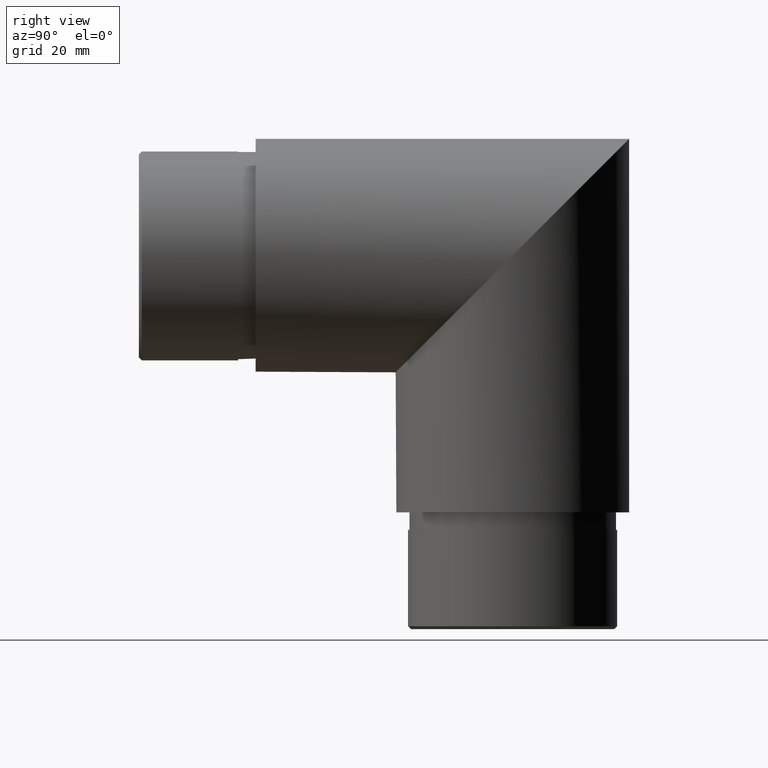
[diagram: clean part render]
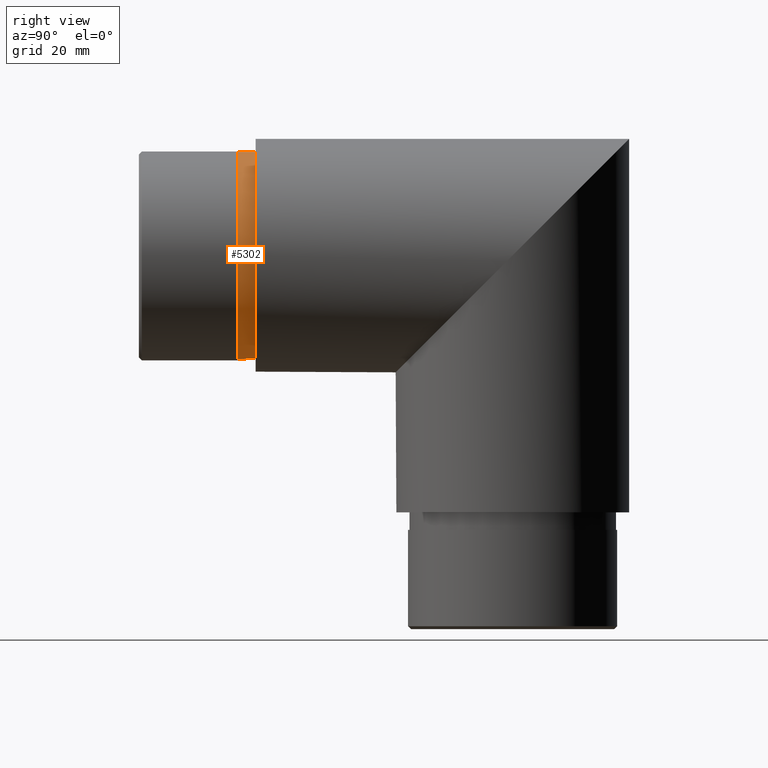
[diagram: same view with one face highlighted and labeled with its STEP entity id]
A machine part, right view. The second image highlights one B-rep face of the part: STEP entity #5302.
In plain terms, the highlighted cylindrical surface (bore or boss wall) has radius 17.75 mm, axis along (-0, 1, -0).
Its self-contained STEP definition (entity closure, byte-faithful):
#547 = DIRECTION ( 'NONE',  ( -0.0000000000000000000, -1.000000000000000000, -0.0000000000000000000 ) ) ;
#919 = AXIS2_PLACEMENT_3D ( 'NONE', #1440, #547, #1363 ) ;
#1207 = ORIENTED_EDGE ( 'NONE', *, *, #4503, .F. ) ;
#1227 = AXIS2_PLACEMENT_3D ( 'NONE', #4016, #7627, #11754 ) ;
#1363 = DIRECTION ( 'NONE',  ( 0.0000000000000000000, 0.0000000000000000000, 1.000000000000000000 ) ) ;
#1440 = CARTESIAN_POINT ( 'NONE',  ( 0.0000000000000000000, 0.0000000000000000000, 0.0000000000000000000 ) ) ;
#1808 = CIRCLE ( 'NONE', #919, 17.75000000000000400 ) ;
#2225 = EDGE_CURVE ( 'NONE', #11471, #11471, #1808, .T. ) ;
#2405 = CIRCLE ( 'NONE', #1227, 17.75000000000000400 ) ;
#3877 = FACE_OUTER_BOUND ( 'NONE', #5788, .T. ) ;
#4016 = CARTESIAN_POINT ( 'NONE',  ( 0.0000000000000000000, -3.000000000000000000, 0.0000000000000000000 ) ) ;
#4503 = EDGE_CURVE ( 'NONE', #4707, #4707, #2405, .T. ) ;
#4707 = VERTEX_POINT ( 'NONE', #9421 ) ;
#5302 = ADVANCED_FACE ( 'NONE', ( #3877, #6513 ), #6827, .T. ) ;
#5514 = DIRECTION ( 'NONE',  ( 0.0000000000000000000, 0.0000000000000000000, 1.000000000000000000 ) ) ;
#5635 = EDGE_LOOP ( 'NONE', ( #5982 ) ) ;
#5788 = EDGE_LOOP ( 'NONE', ( #1207 ) ) ;
#5982 = ORIENTED_EDGE ( 'NONE', *, *, #2225, .T. ) ;
#6513 = FACE_OUTER_BOUND ( 'NONE', #5635, .T. ) ;
#6827 = CYLINDRICAL_SURFACE ( 'NONE', #9827, 17.75000000000000400 ) ;
#7451 = DIRECTION ( 'NONE',  ( -0.0000000000000000000, 1.000000000000000000, -0.0000000000000000000 ) ) ;
#7627 = DIRECTION ( 'NONE',  ( 0.0000000000000000000, -1.000000000000000000, 0.0000000000000000000 ) ) ;
#8487 = CARTESIAN_POINT ( 'NONE',  ( 0.0000000000000000000, 0.0000000000000000000, 17.75000000000000400 ) ) ;
#9421 = CARTESIAN_POINT ( 'NONE',  ( 0.0000000000000000000, -3.000000000000000000, -17.75000000000000400 ) ) ;
#9827 = AXIS2_PLACEMENT_3D ( 'NONE', #11365, #7451, #5514 ) ;
#11365 = CARTESIAN_POINT ( 'NONE',  ( 0.0000000000000000000, -3.000000000000000000, 0.0000000000000000000 ) ) ;
#11471 = VERTEX_POINT ( 'NONE', #8487 ) ;
#11754 = DIRECTION ( 'NONE',  ( 0.0000000000000000000, 0.0000000000000000000, -1.000000000000000000 ) ) ;